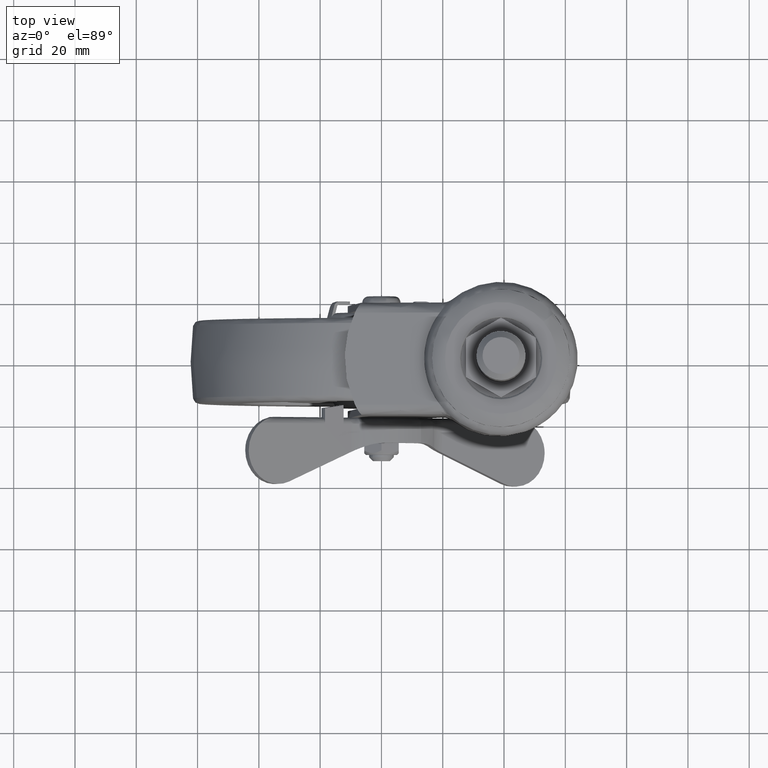
[diagram: clean part render]
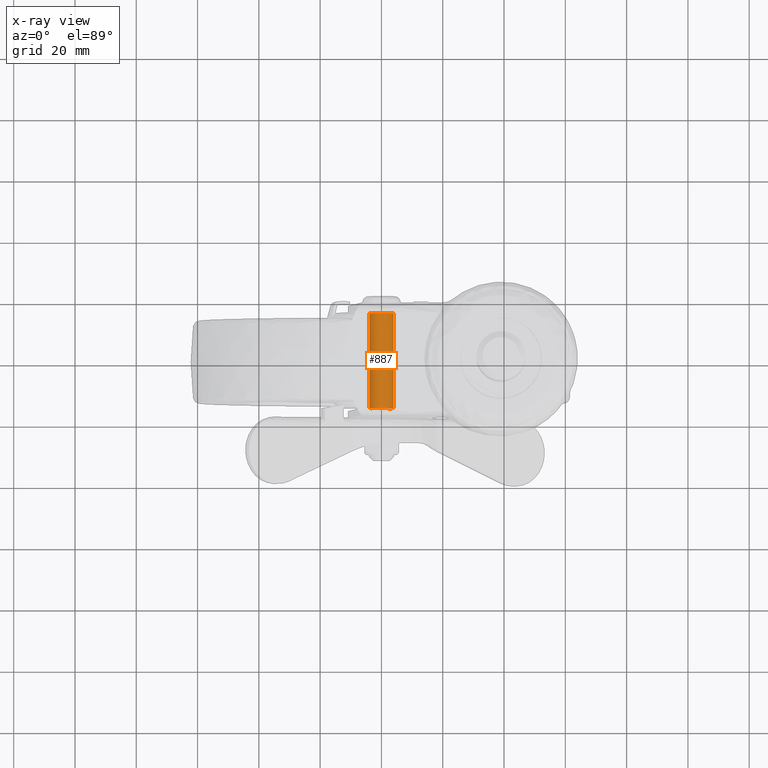
[diagram: x-ray — body ghosted, one internal face saturated and labeled with its STEP entity id]
A machine part, top view, then the same camera in x-ray: the body is ghosted and one INTERNAL B-rep face — a face not visible from any outside direction — is saturated and labeled: STEP entity #887.
In plain terms, the highlighted face is a freeform B-spline surface patch.
Its self-contained STEP definition (entity closure, byte-faithful):
#747=CARTESIAN_POINT('',(2.582968153528030,16.774999999999999,-3.054222571761774));
#748=CARTESIAN_POINT('',(2.670378691349086,16.775000000000009,-2.980299132925975));
#749=CARTESIAN_POINT('',(2.753418302774939,16.774999999999999,-2.901497484049068));
#750=CARTESIAN_POINT('',(5.654915786824010,16.775000000000006,-0.148079181274129));
#751=CARTESIAN_POINT('',(2.901497484049070,16.774999999999999,2.753418302774941));
#752=CARTESIAN_POINT('',(0.148079181274130,16.775000000000006,5.654915786824011));
#753=CARTESIAN_POINT('',(-2.753418302774939,16.774999999999999,2.901497484049072));
#754=CARTESIAN_POINT('',(-5.654915786824010,16.775000000000006,0.148079181274132));
#755=CARTESIAN_POINT('',(-2.901497484049070,16.774999999999999,-2.753418302774938));
#756=CARTESIAN_POINT('',(2.582968153528030,-15.794375000000000,-3.054222571761774));
#757=CARTESIAN_POINT('',(2.670378691349086,-15.794374999999999,-2.980299132925975));
#758=CARTESIAN_POINT('',(2.753418302774939,-15.794375000000000,-2.901497484049068));
#759=CARTESIAN_POINT('',(5.654915786824010,-15.794375000000004,-0.148079181274129));
#760=CARTESIAN_POINT('',(2.901497484049070,-15.794375000000000,2.753418302774941));
#761=CARTESIAN_POINT('',(0.148079181274130,-15.794375000000004,5.654915786824011));
#762=CARTESIAN_POINT('',(-2.753418302774939,-15.794375000000000,2.901497484049072));
#763=CARTESIAN_POINT('',(-5.654915786824010,-15.794375000000004,0.148079181274132));
#764=CARTESIAN_POINT('',(-2.901497484049070,-15.794375000000000,-2.753418302774938));
#772=(BOUNDED_SURFACE()B_SPLINE_SURFACE(2,1,((#747,#756),(#748,#757),(#749,#758),(#750,#759),(#751,#760),(#752,#761),(#753,#762),(#754,#763),(#755,#764)),.UNSPECIFIED.,.F.,.F.,.U.)B_SPLINE_SURFACE_WITH_KNOTS((3,2,2,2,3),(2,2),(0.0,0.265096679918774,6.892513677888112,13.519930675857450,20.147347673826790),(0.0,32.569375000000008),.UNSPECIFIED.)GEOMETRIC_REPRESENTATION_ITEM()RATIONAL_B_SPLINE_SURFACE(((0.977505800795127,0.977505800795127),(0.988284271247462,0.988284271247462),(1.0,1.0),(0.707106781186548,0.707106781186548),(1.0,1.0),(0.707106781186548,0.707106781186548),(1.0,1.0),(0.707106781186548,0.707106781186548),(1.0,1.0)))REPRESENTATION_ITEM('')SURFACE());
#773=CARTESIAN_POINT('',(2.582968346042369,16.000000000000082,-3.054222434135702));
#774=VERTEX_POINT('',#773);
#775=CARTESIAN_POINT('',(4.0,16.0,-0.000000078000231));
#776=VERTEX_POINT('',#775);
#777=CARTESIAN_POINT('',(2.582968346042369,16.000000000000082,-3.054222434135702));
#778=CARTESIAN_POINT('',(2.804110323785117,16.000000000000071,-2.867240901252230));
#779=CARTESIAN_POINT('',(3.280916899767356,16.000000000000050,-2.365878997780619));
#780=CARTESIAN_POINT('',(3.844898703862348,16.000000000000082,-1.339218722152289));
#781=CARTESIAN_POINT('',(4.000353597357161,16.0,-0.470655823119166));
#782=CARTESIAN_POINT('',(4.0,16.0,-0.000000078000231));
#783=B_SPLINE_CURVE_WITH_KNOTS('',3,(#777,#778,#779,#780,#781,#782),.UNSPECIFIED.,.F.,.U.,(4,1,1,4),(0.000000071634496,0.868828276369110,2.063449677658543,3.475312890566413),.UNSPECIFIED.);
#784=EDGE_CURVE('',#774,#776,#783,.T.);
#785=ORIENTED_EDGE('',*,*,#784,.F.);
#786=CARTESIAN_POINT('',(2.582968343871530,-15.0,-3.054222435971518));
#787=VERTEX_POINT('',#786);
#788=CARTESIAN_POINT('',(2.582968346042369,16.000000000000082,-3.054222434135702));
#789=CARTESIAN_POINT('',(2.582968343871530,-15.0,-3.054222435971518));
#790=QUASI_UNIFORM_CURVE('',1,(#788,#789),.UNSPECIFIED.,.F.,.U.);
#791=EDGE_CURVE('',#774,#787,#790,.T.);
#792=ORIENTED_EDGE('',*,*,#791,.T.);
#793=CARTESIAN_POINT('',(3.999999999999889,-15.0,-0.000000078000231));
#794=VERTEX_POINT('',#793);
#795=CARTESIAN_POINT('',(2.582968343871530,-15.0,-3.054222435971518));
#796=CARTESIAN_POINT('',(2.942571714449351,-15.000000000000020,-2.750565658095385));
#797=CARTESIAN_POINT('',(3.434903604711227,-15.0,-2.155906511972686));
#798=CARTESIAN_POINT('',(3.896402539057492,-15.0,-1.085908058252856));
#799=CARTESIAN_POINT('',(4.000179031740953,-15.000000000000011,-0.398221095032034));
#800=CARTESIAN_POINT('',(3.999999999999889,-15.0,-0.000000078000231));
#801=B_SPLINE_CURVE_WITH_KNOTS('',3,(#795,#796,#797,#798,#799,#800),.UNSPECIFIED.,.F.,.U.,(4,1,1,4),(0.000000071634516,1.411863285697615,2.280658857413863,3.475312893409622),.UNSPECIFIED.);
#802=EDGE_CURVE('',#787,#794,#801,.T.);
#803=ORIENTED_EDGE('',*,*,#802,.T.);
#804=CARTESIAN_POINT('',(0.0,-15.0,3.999999999999892));
#805=VERTEX_POINT('',#804);
#806=CARTESIAN_POINT('',(3.999999999999889,-15.0,-0.000000078000231));
#807=CARTESIAN_POINT('',(4.000722460914388,-14.999999999999980,0.556469522963695));
#808=CARTESIAN_POINT('',(3.826479523475532,-15.000000000000050,1.373969630310487));
#809=CARTESIAN_POINT('',(3.258997790933178,-14.999999999999970,2.375310454545219));
#810=CARTESIAN_POINT('',(2.683363487858808,-15.000000000000050,3.010530278766133));
#811=CARTESIAN_POINT('',(2.038081695189240,-14.999999999999950,3.464875779835882));
#812=CARTESIAN_POINT('',(1.177846799646306,-15.000000000000110,3.871845020390047));
#813=CARTESIAN_POINT('',(0.490962929247205,-14.999999999999950,4.000479808286315));
#814=CARTESIAN_POINT('',(0.0,-15.0,3.999999999999892));
#815=B_SPLINE_CURVE_WITH_KNOTS('',3,(#806,#807,#808,#809,#810,#811,#812,#813,#814),.UNSPECIFIED.,.F.,.U.,(4,1,1,1,1,1,4),(0.000000218591531,1.669016903153450,2.454463002235737,3.436148287955877,4.221598647189431,4.810686317266455,6.283343021310432),.UNSPECIFIED.);
#816=EDGE_CURVE('',#794,#805,#815,.T.);
#817=ORIENTED_EDGE('',*,*,#816,.T.);
#818=CARTESIAN_POINT('',(-3.999999999999889,-15.0,0.000000078000274));
#819=VERTEX_POINT('',#818);
#820=CARTESIAN_POINT('',(0.0,-15.0,3.999999999999892));
#821=CARTESIAN_POINT('',(-0.556475985131201,-14.999999999999989,4.000729534947877));
#822=CARTESIAN_POINT('',(-1.373959939825822,-15.000000000000011,3.826464252589861));
#823=CARTESIAN_POINT('',(-2.375325364902580,-14.999999999999970,3.259015961305210));
#824=CARTESIAN_POINT('',(-3.010506652755008,-15.000000000000099,2.683343023098676));
#825=CARTESIAN_POINT('',(-3.502765422458835,-14.999999999999829,1.984323074023559));
#826=CARTESIAN_POINT('',(-3.889304920351293,-15.000000000000220,1.112519372414300));
#827=CARTESIAN_POINT('',(-4.000216212696574,-14.999999999999950,0.425451311423683));
#828=CARTESIAN_POINT('',(-3.999999999999889,-15.0,0.000000078000274));
#829=B_SPLINE_CURVE_WITH_KNOTS('',3,(#820,#821,#822,#823,#824,#825,#826,#827,#828),.UNSPECIFIED.,.F.,.U.,(4,1,1,1,1,1,4),(0.000000218698374,1.669016879881815,2.454462967931812,3.436148239922260,4.221598588112872,5.007053172991697,6.283342933383777),.UNSPECIFIED.);
#830=EDGE_CURVE('',#805,#819,#829,.T.);
#831=ORIENTED_EDGE('',*,*,#830,.T.);
#832=CARTESIAN_POINT('',(-2.901497413654850,-15.0,-2.753418348665266));
#833=VERTEX_POINT('',#832);
#834=CARTESIAN_POINT('',(-3.999999999999889,-15.0,0.000000078000274));
#835=CARTESIAN_POINT('',(-4.000383330154105,-14.999999999999980,-0.474566481742916));
#836=CARTESIAN_POINT('',(-3.817587470120359,-15.000000000000080,-1.486542836869390));
#837=CARTESIAN_POINT('',(-3.272253055788687,-14.999999999999931,-2.363716593428001));
#838=CARTESIAN_POINT('',(-2.901497413654850,-15.0,-2.753418348665266));
#839=B_SPLINE_CURVE_WITH_KNOTS('',3,(#834,#835,#836,#837,#838),.UNSPECIFIED.,.F.,.U.,(4,1,4),(0.000000059123476,1.423581096116165,3.036944262706940),.UNSPECIFIED.);
#840=EDGE_CURVE('',#819,#833,#839,.T.);
#841=ORIENTED_EDGE('',*,*,#840,.T.);
#842=CARTESIAN_POINT('',(-2.901497412970649,15.999999999999989,-2.753418349386344));
#843=VERTEX_POINT('',#842);
#844=CARTESIAN_POINT('',(-2.901497412970649,15.999999999999989,-2.753418349386344));
#845=CARTESIAN_POINT('',(-2.901497413654850,-15.0,-2.753418348665266));
#846=QUASI_UNIFORM_CURVE('',1,(#844,#845),.UNSPECIFIED.,.F.,.U.);
#847=EDGE_CURVE('',#843,#833,#846,.T.);
#848=ORIENTED_EDGE('',*,*,#847,.F.);
#849=CARTESIAN_POINT('',(-3.999999999999999,16.0,0.000000078000274));
#850=VERTEX_POINT('',#849);
#851=CARTESIAN_POINT('',(-3.999999999999999,16.0,0.000000078000274));
#852=CARTESIAN_POINT('',(-4.000338032576863,15.999999999999989,-0.474560718132469));
#853=CARTESIAN_POINT('',(-3.817669224350605,16.000000000000039,-1.486553549112790));
#854=CARTESIAN_POINT('',(-3.272203995265215,15.999999999999940,-2.363700628845247));
#855=CARTESIAN_POINT('',(-2.901497412970649,15.999999999999989,-2.753418349386344));
#856=B_SPLINE_CURVE_WITH_KNOTS('',3,(#851,#852,#853,#854,#855),.UNSPECIFIED.,.F.,.U.,(4,1,4),(0.000000059123505,1.423581096582207,3.036944263701098),.UNSPECIFIED.);
#857=EDGE_CURVE('',#850,#843,#856,.T.);
#858=ORIENTED_EDGE('',*,*,#857,.F.);
#859=CARTESIAN_POINT('',(0.0,16.0,4.000000000000002));
#860=VERTEX_POINT('',#859);
#861=CARTESIAN_POINT('',(0.0,16.0,4.000000000000002));
#862=CARTESIAN_POINT('',(-0.425450102125375,16.000000000000021,4.000214197450776));
#863=CARTESIAN_POINT('',(-1.112521514425785,15.999999999999950,3.889305882568912));
#864=CARTESIAN_POINT('',(-1.984320707811871,16.000000000000071,3.502764920797059));
#865=CARTESIAN_POINT('',(-2.683345338373234,15.999999999999950,3.010508111349736));
#866=CARTESIAN_POINT('',(-3.259014765243643,16.000000000000039,2.375324231051541));
#867=CARTESIAN_POINT('',(-3.826467569205864,16.000000000000039,1.373956777354567));
#868=CARTESIAN_POINT('',(-4.000727383991118,15.999999999999970,0.556472757344609));
#869=CARTESIAN_POINT('',(-3.999999999999999,16.0,0.000000078000274));
#870=B_SPLINE_CURVE_WITH_KNOTS('',3,(#861,#862,#863,#864,#865,#866,#867,#868,#869),.UNSPECIFIED.,.F.,.U.,(4,1,1,1,1,1,4),(0.000000218699039,1.276294058210666,2.061741642429277,2.847192284100237,3.828884993188796,4.614328271474111,6.283342933383943),.UNSPECIFIED.);
#871=EDGE_CURVE('',#860,#850,#870,.T.);
#872=ORIENTED_EDGE('',*,*,#871,.F.);
#873=CARTESIAN_POINT('',(4.0,16.0,-0.000000078000231));
#874=CARTESIAN_POINT('',(4.000214343227620,16.000000000000028,0.425451364806256));
#875=CARTESIAN_POINT('',(3.889280019281823,15.999999999999950,1.112499623428860));
#876=CARTESIAN_POINT('',(3.422984378407286,16.000000000000060,2.164798955673646));
#877=CARTESIAN_POINT('',(2.791117080597465,15.999999999999890,2.934959169809130));
#878=CARTESIAN_POINT('',(2.038038670986953,16.000000000000110,3.464835864739991));
#879=CARTESIAN_POINT('',(1.177850298648976,15.999999999999750,3.871863303095896));
#880=CARTESIAN_POINT('',(0.490959022972059,16.000000000000171,4.000460926331136));
#881=CARTESIAN_POINT('',(0.0,16.0,4.000000000000002));
#882=B_SPLINE_CURVE_WITH_KNOTS('',3,(#873,#874,#875,#876,#877,#878,#879,#880,#881),.UNSPECIFIED.,.F.,.U.,(4,1,1,1,1,1,4),(0.000000218591275,1.276294075986550,2.061741671177444,3.436148287955804,4.221598647189408,4.810686317266485,6.283343021310610),.UNSPECIFIED.);
#883=EDGE_CURVE('',#776,#860,#882,.T.);
#884=ORIENTED_EDGE('',*,*,#883,.F.);
#885=EDGE_LOOP('',(#785,#792,#803,#817,#831,#841,#848,#858,#872,#884));
#886=FACE_OUTER_BOUND('',#885,.T.);
#887=ADVANCED_FACE('',(#886),#772,.F.);